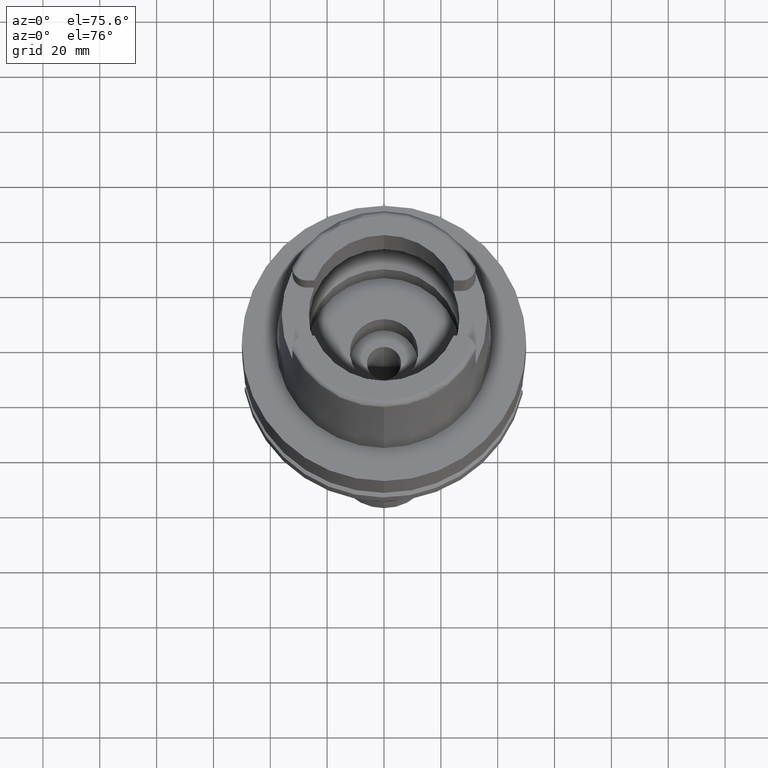
[diagram: clean part render]
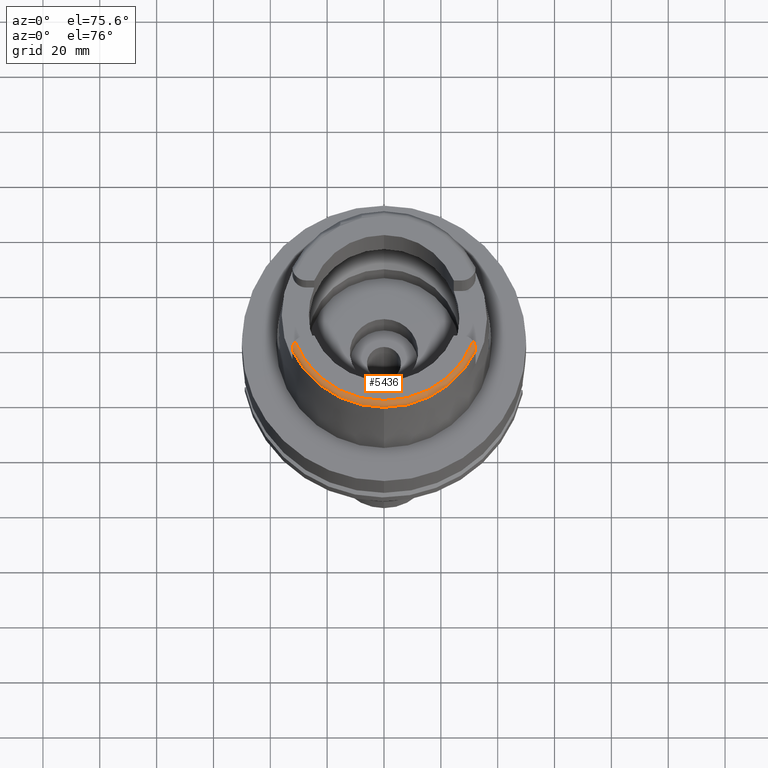
[diagram: same view with one face highlighted and labeled with its STEP entity id]
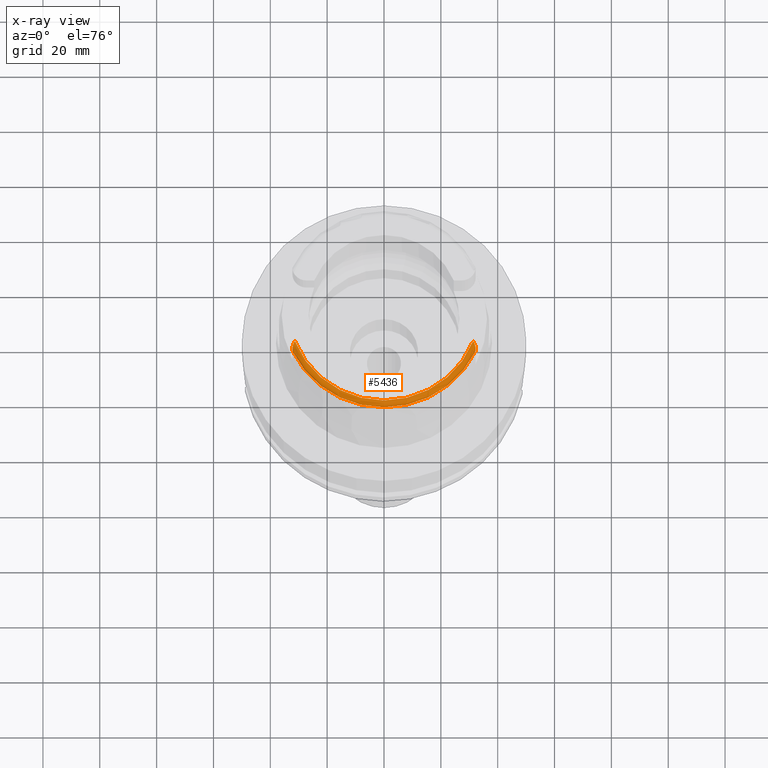
[diagram: x-ray of the same camera — body ghosted, the highlighted face saturated]
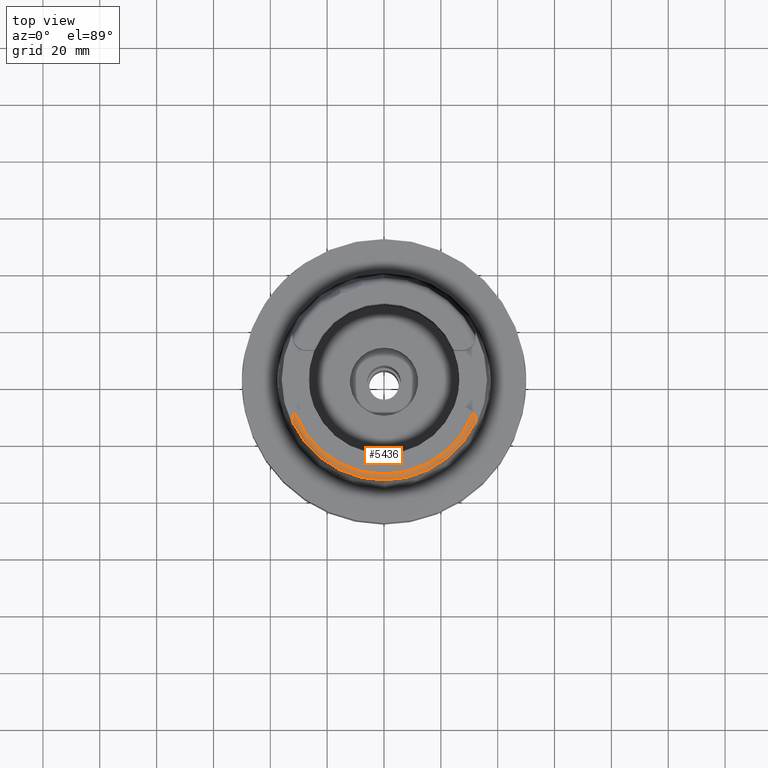
[diagram: same view with one face highlighted and labeled with its STEP entity id]
A machine part, auxiliary view. The second image highlights one B-rep face of the part: STEP entity #5436.
The next image is the same camera in x-ray: the body ghosted, the highlighted face saturated — about 0% of this face is hidden behind the body in this view.
A second angle (top view) of the same face is appended — the face is thin or edge-on in the first view.
In plain terms, the highlighted toroidal blend (fillet) surface has major radius 33.5974 mm and minor (blend) radius 2 mm.
Its self-contained STEP definition (entity closure, byte-faithful):
#60 = DIRECTION ( 'NONE',  ( 0.9060280460804950309, -0.4232176505245974218, 0.0000000000000000000 ) ) ;
#110 = CARTESIAN_POINT ( 'NONE',  ( 31.98009255948755580, -13.28941999921729256, 49.71201104323495201 ) ) ;
#152 = AXIS2_PLACEMENT_3D ( 'NONE', #3163, #4069, #1885 ) ;
#170 = DIRECTION ( 'NONE',  ( 0.0000000000000000000, -1.000000000000000000, 0.0000000000000000000 ) ) ;
#205 = CARTESIAN_POINT ( 'NONE',  ( -31.35385269249000473, -12.07161079256999869, 50.00000000000000000 ) ) ;
#252 = VERTEX_POINT ( 'NONE', #1235 ) ;
#266 = CARTESIAN_POINT ( 'NONE',  ( 32.25000000000000000, -14.89000000000000057, 48.54599893821999501 ) ) ;
#349 = CARTESIAN_POINT ( 'NONE',  ( 32.25000000000000000, -15.04642711795993826, 48.25215134497555169 ) ) ;
#427 = ORIENTED_EDGE ( 'NONE', *, *, #2123, .F. ) ;
#432 = VERTEX_POINT ( 'NONE', #2185 ) ;
#440 = DIRECTION ( 'NONE',  ( 0.9332215253017949186, -0.3593015233941980191, 0.0000000000000000000 ) ) ;
#457 = CARTESIAN_POINT ( 'NONE',  ( -32.11976307048302459, -13.76996697600307762, 49.47618030858325255 ) ) ;
#492 = DIRECTION ( 'NONE',  ( 0.0000000000000000000, 0.0000000000000000000, -1.000000000000000000 ) ) ;
#533 = CARTESIAN_POINT ( 'NONE',  ( 32.25000552016999222, -15.06439830907000044, 48.10004152623000095 ) ) ;
#538 = CARTESIAN_POINT ( 'NONE',  ( 0.0000000000000000000, 0.0000000000000000000, 48.09987853799000135 ) ) ;
#561 = CARTESIAN_POINT ( 'NONE',  ( 32.25000000000000711, -14.78332110910488240, 48.70357925602428395 ) ) ;
#590 = CARTESIAN_POINT ( 'NONE',  ( 32.08468573746268504, -13.62966222652188897, 49.55192916646759471 ) ) ;
#609 = EDGE_CURVE ( 'NONE', #1713, #3574, #2088, .T. ) ;
#618 = CARTESIAN_POINT ( 'NONE',  ( 31.68309535043851355, -12.58458411520629028, 49.95437707252695958 ) ) ;
#743 = CARTESIAN_POINT ( 'NONE',  ( -32.25000000000000000, -14.89000000000000057, 48.54599893821999501 ) ) ;
#790 = ORIENTED_EDGE ( 'NONE', *, *, #4420, .F. ) ;
#841 = ORIENTED_EDGE ( 'NONE', *, *, #609, .F. ) ;
#862 = CARTESIAN_POINT ( 'NONE',  ( -32.12308776369264507, -13.78418960954336647, 49.46820629330045449 ) ) ;
#894 = CARTESIAN_POINT ( 'NONE',  ( -32.21984651084883922, -14.33887112821259358, 49.10657734896297200 ) ) ;
#925 = AXIS2_PLACEMENT_3D ( 'NONE', #538, #2232, #60 ) ;
#969 = CARTESIAN_POINT ( 'NONE',  ( 32.16981739288193154, -14.00133967072795649, 49.34147261140432761 ) ) ;
#994 = CARTESIAN_POINT ( 'NONE',  ( 32.24706274480269030, -14.63334824138897439, 48.86211888051489893 ) ) ;
#1051 = CARTESIAN_POINT ( 'NONE',  ( 31.98714128991079875, -13.30988530162909100, 49.70323572596372941 ) ) ;
#1235 = CARTESIAN_POINT ( 'NONE',  ( 32.25000000000000000, -14.89000000000000057, 48.54599893821999501 ) ) ;
#1259 = EDGE_CURVE ( 'NONE', #3198, #4133, #1325, .T. ) ;
#1307 = CARTESIAN_POINT ( 'NONE',  ( -31.52576275548954499, -12.31460929879131250, 50.00000000000000000 ) ) ;
#1325 = B_SPLINE_CURVE_WITH_KNOTS ( 'NONE', 3,
 ( #2897, #4199, #3350, #5074, #1647, #3377, #4725, #1367, #2548, #894, #2609, #2984, #4338, #3461, #2519, #5184, #862, #457, #2180, #3864, #2585, #5580, #4701, #3917, #3829, #1701, #5247, #1307, #3887 ),
 .UNSPECIFIED., .F., .F.,
 ( 4, 2, 2, 2, 2, 2, 2, 1, 2, 2, 1, 1, 2, 2, 2, 4 ),
 ( 0.0000000000000000000, 0.1250000000000185407, 0.1875000000000298928, 0.2187500000000355549, 0.2500000000000412448, 0.3750000000000518474, 0.4375000000000575651, 0.4687500000000597300, 0.4843750000000599520, 0.5000000000000601741, 0.5625000000000514033, 0.5937500000000459632, 0.6093750000000448530, 0.6250000000000437428, 0.7500000000000286438, 1.000000000000000000 ),
 .UNSPECIFIED. ) ;
#1367 = CARTESIAN_POINT ( 'NONE',  ( -32.23344184970061832, -14.48768865750348134, 48.98256741830027750 ) ) ;
#1417 = CARTESIAN_POINT ( 'NONE',  ( 32.21870795098538309, -14.33761646573079673, 49.10481104066828806 ) ) ;
#1501 = CARTESIAN_POINT ( 'NONE',  ( -32.25000000000000000, -14.89000000000000057, 48.54599893821999501 ) ) ;
#1559 = CARTESIAN_POINT ( 'NONE',  ( 32.25000552016999222, -15.06439830907000044, 48.10004152623000095 ) ) ;
#1647 = CARTESIAN_POINT ( 'NONE',  ( -32.24269136699606975, -14.61958674260085189, 48.86299695822480516 ) ) ;
#1701 = CARTESIAN_POINT ( 'NONE',  ( -31.88187533387631944, -13.02363533361767445, 49.81862753779268616 ) ) ;
#1713 = VERTEX_POINT ( 'NONE', #533 ) ;
#1718 = B_SPLINE_CURVE_WITH_KNOTS ( 'NONE', 3,
 ( #1984, #4563, #2374, #743 ),
 .UNSPECIFIED., .F., .F.,
 ( 4, 4 ),
 ( 0.0000000000000000000, 1.000000000000000000 ),
 .UNSPECIFIED. ) ;
#1763 = AXIS2_PLACEMENT_3D ( 'NONE', #3508, #3082, #170 ) ;
#1806 = CARTESIAN_POINT ( 'NONE',  ( 31.35385269249000473, -12.07161079256999869, 50.00000000000000000 ) ) ;
#1807 = ORIENTED_EDGE ( 'NONE', *, *, #4483, .F. ) ;
#1869 = CARTESIAN_POINT ( 'NONE',  ( 32.01734872731634596, -13.39927929415896202, 49.66426131938792565 ) ) ;
#1885 = DIRECTION ( 'NONE',  ( -0.0004184165975219878483, -0.9999999124637716230, 0.0000000000000000000 ) ) ;
#1894 = CARTESIAN_POINT ( 'NONE',  ( 31.84881067917248743, -12.95064101592304162, 49.84116340580627735 ) ) ;
#1933 = ORIENTED_EDGE ( 'NONE', *, *, #5581, .F. ) ;
#1944 = CARTESIAN_POINT ( 'NONE',  ( 31.35385269249000473, -12.07161079256999869, 50.00000000000000000 ) ) ;
#1984 = CARTESIAN_POINT ( 'NONE',  ( -32.24999491821000674, -15.06448480959000058, 48.09973261137000122 ) ) ;
#2088 = CIRCLE ( 'NONE', #925, 35.59494289391000166 ) ;
#2123 = EDGE_CURVE ( 'NONE', #432, #3198, #1718, .T. ) ;
#2130 = AXIS2_PLACEMENT_3D ( 'NONE', #3072, #492, #440 ) ;
#2180 = CARTESIAN_POINT ( 'NONE',  ( -32.09881019691194837, -13.68255421211970280, 49.52455015020341733 ) ) ;
#2185 = CARTESIAN_POINT ( 'NONE',  ( -32.24999491821000674, -15.06448480959000058, 48.09973261137000122 ) ) ;
#2232 = DIRECTION ( 'NONE',  ( 0.0000000000000000000, 0.0000000000000000000, -1.000000000000000000 ) ) ;
#2254 = ORIENTED_EDGE ( 'NONE', *, *, #5342, .T. ) ;
#2316 = CARTESIAN_POINT ( 'NONE',  ( 32.22710734301839608, -14.41725304602819335, 49.04155517808899845 ) ) ;
#2374 = CARTESIAN_POINT ( 'NONE',  ( -32.25000000000000000, -14.98833473155077201, 48.40074416362467957 ) ) ;
#2411 = CARTESIAN_POINT ( 'NONE',  ( 32.25000000000000000, -14.98829434826993889, 48.40080381563887357 ) ) ;
#2519 = CARTESIAN_POINT ( 'NONE',  ( -32.14078449015791250, -13.86248313880816418, 49.42352468553131928 ) ) ;
#2548 = CARTESIAN_POINT ( 'NONE',  ( -32.23157047144350429, -14.46552421806966571, 49.00148796836916176 ) ) ;
#2585 = CARTESIAN_POINT ( 'NONE',  ( -32.03367217308975512, -13.45228935813417692, 49.63939390162108367 ) ) ;
#2586 = TOROIDAL_SURFACE ( 'NONE', #152, 33.59743838135999994, 2.000000000000000000 ) ;
#2596 = EDGE_LOOP ( 'NONE', ( #790, #841, #1933, #1807, #2254, #3230, #427 ) ) ;
#2609 = CARTESIAN_POINT ( 'NONE',  ( -32.20664214130055569, -14.23059728313653238, 49.18722547056877659 ) ) ;
#2744 = CARTESIAN_POINT ( 'NONE',  ( 32.20542919477085064, -14.22969309755084488, 49.18585125027916405 ) ) ;
#2768 = CIRCLE ( 'NONE', #1763, 35.59494289391000166 ) ;
#2897 = CARTESIAN_POINT ( 'NONE',  ( -32.25000000000000000, -14.89000000000000057, 48.54599893821999501 ) ) ;
#2984 = CARTESIAN_POINT ( 'NONE',  ( -32.17897270145498112, -14.05839832662296018, 49.30306257867361808 ) ) ;
#3015 = CARTESIAN_POINT ( 'NONE',  ( 1.065814103639999922E-14, -35.59494289391000166, 48.09987853799000135 ) ) ;
#3072 = CARTESIAN_POINT ( 'NONE',  ( 0.0000000000000000000, 0.0000000000000000000, 50.00000000000000000 ) ) ;
#3082 = DIRECTION ( 'NONE',  ( 0.0000000000000000000, 0.0000000000000000000, -1.000000000000000000 ) ) ;
#3112 = CARTESIAN_POINT ( 'NONE',  ( 31.96665577606332675, -13.25123051580409594, 49.72807329034578316 ) ) ;
#3148 = CARTESIAN_POINT ( 'NONE',  ( 32.22439826796543372, -14.39008618857364041, 49.06353737908489165 ) ) ;
#3163 = CARTESIAN_POINT ( 'NONE',  ( 0.0000000000000000000, 0.0000000000000000000, 48.00000000000000000 ) ) ;
#3187 = FACE_OUTER_BOUND ( 'NONE', #2596, .T. ) ;
#3198 = VERTEX_POINT ( 'NONE', #1501 ) ;
#3230 = ORIENTED_EDGE ( 'NONE', *, *, #1259, .F. ) ;
#3327 = VERTEX_POINT ( 'NONE', #1944 ) ;
#3350 = CARTESIAN_POINT ( 'NONE',  ( -32.24915813002014175, -14.77230508930956354, 48.70410011818029972 ) ) ;
#3377 = CARTESIAN_POINT ( 'NONE',  ( -32.23855583727139162, -14.55529836971654056, 48.92274393537389443 ) ) ;
#3461 = CARTESIAN_POINT ( 'NONE',  ( -32.15037778988224204, -13.90850017099751845, 49.39617011922508993 ) ) ;
#3508 = CARTESIAN_POINT ( 'NONE',  ( 0.0000000000000000000, 0.0000000000000000000, 48.09987853799000135 ) ) ;
#3549 = B_SPLINE_CURVE_WITH_KNOTS ( 'NONE', 3,
 ( #1806, #4500, #618, #1894, #5323, #5264, #3112, #110, #1051, #1869, #4022, #590, #4079, #4831, #3623, #3562, #969, #3995, #2744, #5293, #1417, #3148, #2316, #994, #561, #4055 ),
 .UNSPECIFIED., .F., .F.,
 ( 4, 2, 1, 1, 2, 2, 1, 1, 2, 2, 2, 2, 2, 2, 4 ),
 ( 0.0000000000000000000, 0.2500000000000156541, 0.3125000000000185962, 0.3437500000000209832, 0.3593750000000229261, 0.3750000000000249245, 0.4375000000000283662, 0.4687500000000300315, 0.4843750000000308087, 0.5000000000000316414, 0.6250000000000260902, 0.6875000000000247580, 0.7187500000000239808, 0.7500000000000233147, 1.000000000000000000 ),
 .UNSPECIFIED. ) ;
#3562 = CARTESIAN_POINT ( 'NONE',  ( 32.14609335246277766, -13.87980364952430534, 49.41540785710896699 ) ) ;
#3574 = VERTEX_POINT ( 'NONE', #3015 ) ;
#3623 = CARTESIAN_POINT ( 'NONE',  ( 32.11173469240175393, -13.73647483760467303, 49.49470957366872170 ) ) ;
#3829 = CARTESIAN_POINT ( 'NONE',  ( -31.94101369027623605, -13.17345379333865907, 49.76268526164574268 ) ) ;
#3857 = CIRCLE ( 'NONE', #2130, 33.59743838135999994 ) ;
#3864 = CARTESIAN_POINT ( 'NONE',  ( -32.07101523686365852, -13.57682580313457699, 49.57980642734892740 ) ) ;
#3887 = CARTESIAN_POINT ( 'NONE',  ( -31.35385269249000473, -12.07161079256999869, 50.00000000000000000 ) ) ;
#3917 = CARTESIAN_POINT ( 'NONE',  ( -31.99944210229422481, -13.34627829169319035, 49.68735975337590105 ) ) ;
#3921 = B_SPLINE_CURVE_WITH_KNOTS ( 'NONE', 3,
 ( #266, #2411, #349, #1559 ),
 .UNSPECIFIED., .F., .F.,
 ( 4, 4 ),
 ( 0.0000000000000000000, 1.000000000000000000 ),
 .UNSPECIFIED. ) ;
#3995 = CARTESIAN_POINT ( 'NONE',  ( 32.19751376490657435, -14.17382830543501093, 49.22540249637011556 ) ) ;
#4022 = CARTESIAN_POINT ( 'NONE',  ( 32.05067351280793986, -13.50610583278473342, 49.61468385383996349 ) ) ;
#4055 = CARTESIAN_POINT ( 'NONE',  ( 32.25000000000000000, -14.89000000000000057, 48.54599893821999501 ) ) ;
#4069 = DIRECTION ( 'NONE',  ( 0.0000000000000000000, 0.0000000000000000000, 1.000000000000000000 ) ) ;
#4079 = CARTESIAN_POINT ( 'NONE',  ( 32.09824731862990888, -13.68235593622696378, 49.52398123382949535 ) ) ;
#4133 = VERTEX_POINT ( 'NONE', #205 ) ;
#4199 = CARTESIAN_POINT ( 'NONE',  ( -32.25000000000000000, -14.83656711639352643, 48.62492711895643538 ) ) ;
#4338 = CARTESIAN_POINT ( 'NONE',  ( -32.16843663778446682, -13.99937058969887360, 49.34081910232459478 ) ) ;
#4420 = EDGE_CURVE ( 'NONE', #3574, #432, #2768, .T. ) ;
#4483 = EDGE_CURVE ( 'NONE', #3327, #252, #3549, .T. ) ;
#4500 = CARTESIAN_POINT ( 'NONE',  ( 31.52588135809474679, -12.31477694607961126, 49.99999999999999289 ) ) ;
#4563 = CARTESIAN_POINT ( 'NONE',  ( -32.25000000000000000, -15.04649633474743986, 48.25198872134134120 ) ) ;
#4701 = CARTESIAN_POINT ( 'NONE',  ( -32.00495149487681346, -13.36291831953512599, 49.67998188084498423 ) ) ;
#4725 = CARTESIAN_POINT ( 'NONE',  ( -32.23699260029862046, -14.53320304042900624, 48.94267489557903872 ) ) ;
#4831 = CARTESIAN_POINT ( 'NONE',  ( 32.10706589809235112, -13.71742438707448919, 49.50511526393268724 ) ) ;
#5074 = CARTESIAN_POINT ( 'NONE',  ( -32.24471111696544057, -14.65978148734398623, 48.82322684474727481 ) ) ;
#5184 = CARTESIAN_POINT ( 'NONE',  ( -32.13029030258796581, -13.81561825029765522, 49.45039783862160476 ) ) ;
#5247 = CARTESIAN_POINT ( 'NONE',  ( -31.68257284576277755, -12.58351786578850984, 49.95465688444818397 ) ) ;
#5264 = CARTESIAN_POINT ( 'NONE',  ( 31.94615493560329966, -13.19410225267760950, 49.75165870953635761 ) ) ;
#5293 = CARTESIAN_POINT ( 'NONE',  ( 32.21560103060780023, -14.31095265483839896, 49.12523256952343331 ) ) ;
#5323 = CARTESIAN_POINT ( 'NONE',  ( 31.89591903782310922, -13.06192277649545730, 49.80313569398544615 ) ) ;
#5342 = EDGE_CURVE ( 'NONE', #3327, #4133, #3857, .T. ) ;
#5436 = ADVANCED_FACE ( 'NONE', ( #3187 ), #2586, .T. ) ;
#5580 = CARTESIAN_POINT ( 'NONE',  ( -32.01658593640767236, -13.39869421168876684, 49.66388606579536003 ) ) ;
#5581 = EDGE_CURVE ( 'NONE', #252, #1713, #3921, .T. ) ;